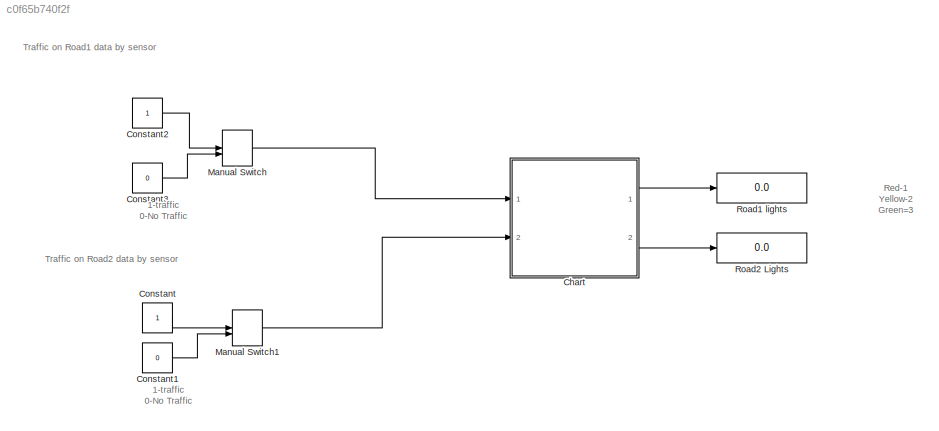
MODEL slx_c0f65b740f2f
KIND model
CONFIG AbsTol = auto
CONFIG EnableMultiTasking = off
CONFIG FixedStep = auto
CONFIG MaxStep = auto
CONFIG MinStep = auto
CONFIG RelTol = 1e-3
CONFIG SampleTimeConstraint = Unconstrained
CONFIG SolverName = VariableStepAuto
CONFIG StartTime = 0.0
CONFIG StopTime = 50
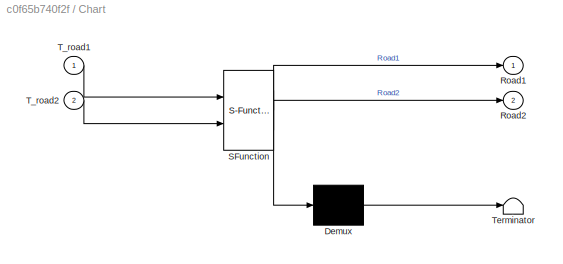
BLOCK [SubSystem] Chart
  ErrorFcn = Stateflow.Translate.translate
  PermitHierarchicalResolution = ExplicitOnly
  Ports = [2, 2]
  RequestExecContextInheritance = off
  SFBlockType = Chart
  TreatAsAtomicUnit = on
BLOCK [Demux] Chart/ Demux 
  Outputs = 1
  Ports = [1, 1]
BLOCK [S-Function] Chart/ SFunction 
  EnableBusSupport = on
  FunctionName = sf_sfun
  PortCounts = [2 3]
  Ports = [2, 3]
  SFcnIsStateOwnerBlock = off
  SFunctionDeploymentMode = off
  Tag = Stateflow S-Function 3
BLOCK [Terminator] Chart/ Terminator 
BLOCK [Outport] Chart/Road1
BLOCK [Outport] Chart/Road2
  Port = 2
BLOCK [Inport] Chart/T_road1
BLOCK [Inport] Chart/T_road2
  Port = 2
BLOCK [Constant] Constant
BLOCK [Constant] Constant1
  Value = 0
BLOCK [Constant] Constant2
BLOCK [Constant] Constant3
  Value = 0
BLOCK [ManualSwitch] Manual Switch
  CurrentSetting = 0
BLOCK [ManualSwitch] Manual Switch1
  CurrentSetting = 0
BLOCK [Display] Road1 lights
  Decimation = 1
  Ports = [1]
BLOCK [Display] Road2 Lights
  Decimation = 1
  Ports = [1]
ANNOTATION (root): 1-traffic 0-No Traffic
ANNOTATION (root): Red-1 Yellow-2 Green=3
ANNOTATION (root): Traffic on Road1 data by sensor
ANNOTATION (root): Traffic on Road2 data by sensor
LINE Chart:1 -> Road1 lights:1
LINE Chart:2 -> Road2 Lights:1
LINE Constant1:1 -> Manual Switch1:2
LINE Constant2:1 -> Manual Switch:1
LINE Constant3:1 -> Manual Switch:2
LINE Constant:1 -> Manual Switch1:1
LINE Manual Switch1:1 -> Chart:2
LINE Manual Switch:1 -> Chart:1
CHART Chart states=6 transitions=13
  STATE_LABEL 'RedGreenIntermediate\nentry:\nRoad1=1;\nRoad2=3;\n'
  STATE_LABEL 'GreenRedIntermediate\nentry:\nRoad1=2;\nRoad2=1;'
  STATE_LABEL 'GreenRed\nentry:\nRoad1=3;\nRoad2=1\n'
  STATE_LABEL 'YellowRed\nentry:\nRoad1=2;\nRoad2=1;'
  STATE_LABEL 'RedGreen\nentry:\nRoad1=1;\nRoad2=3;'
  STATE_LABEL 'RedYellow\nentry:\nRoad1=1;\nRoad2=2;'
CHART  states=0 transitions=0
